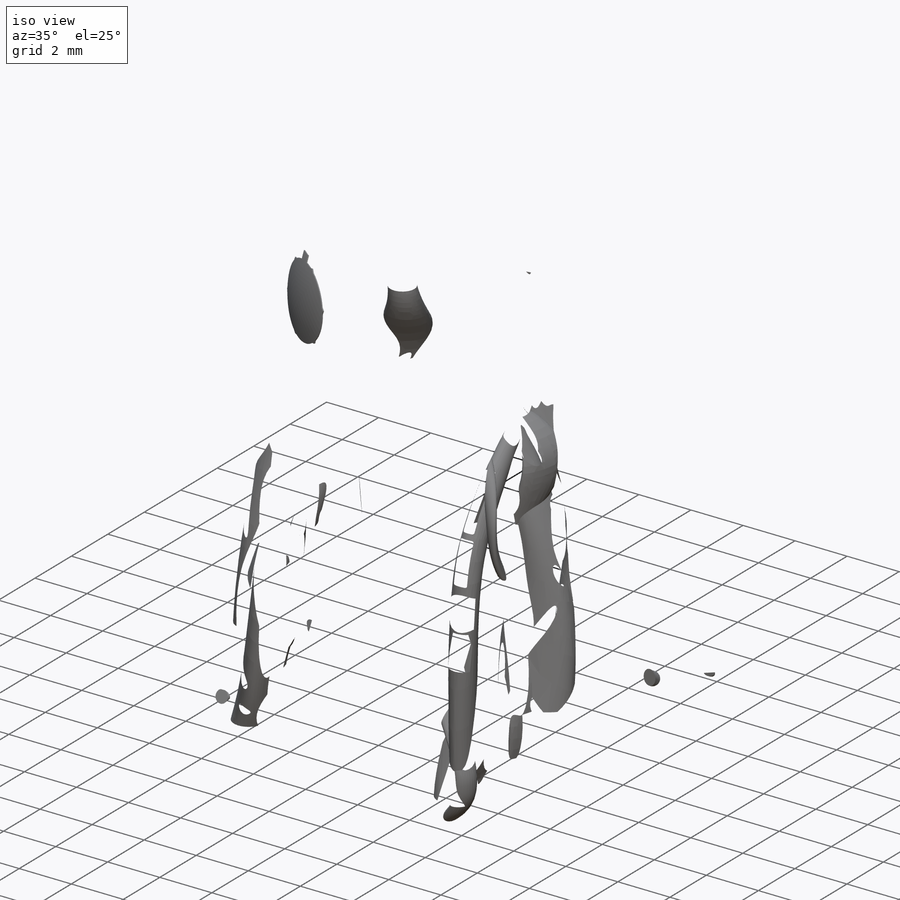
[diagram: iso view]
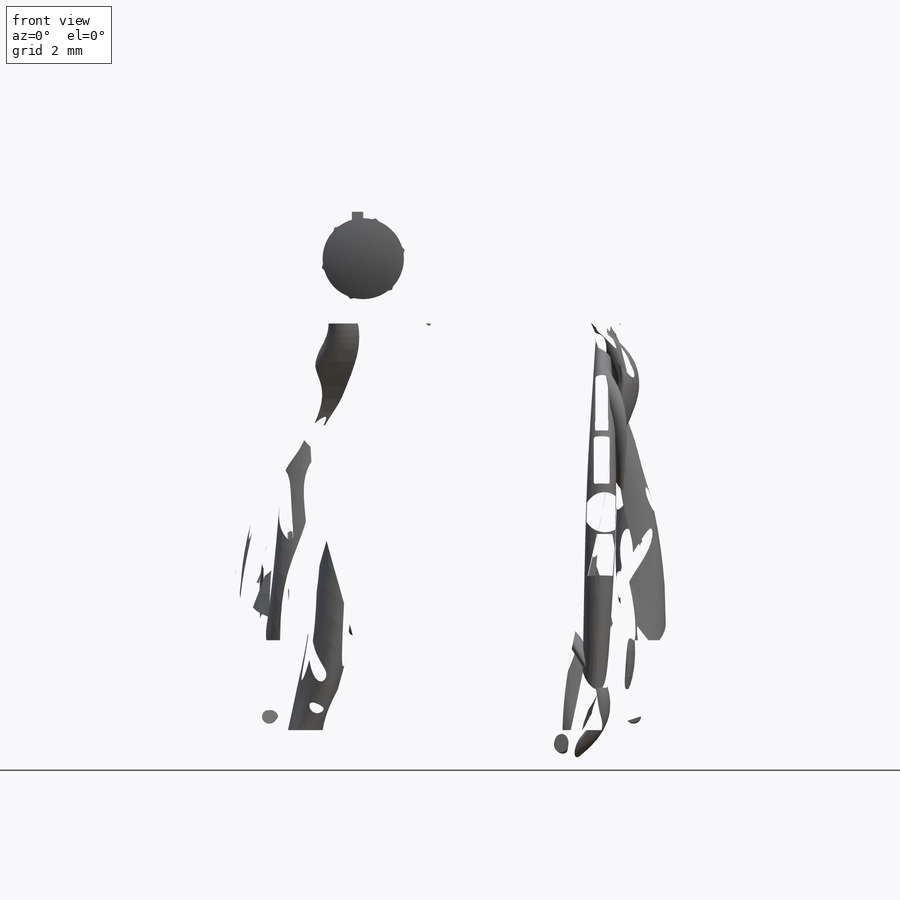
[diagram: front view]
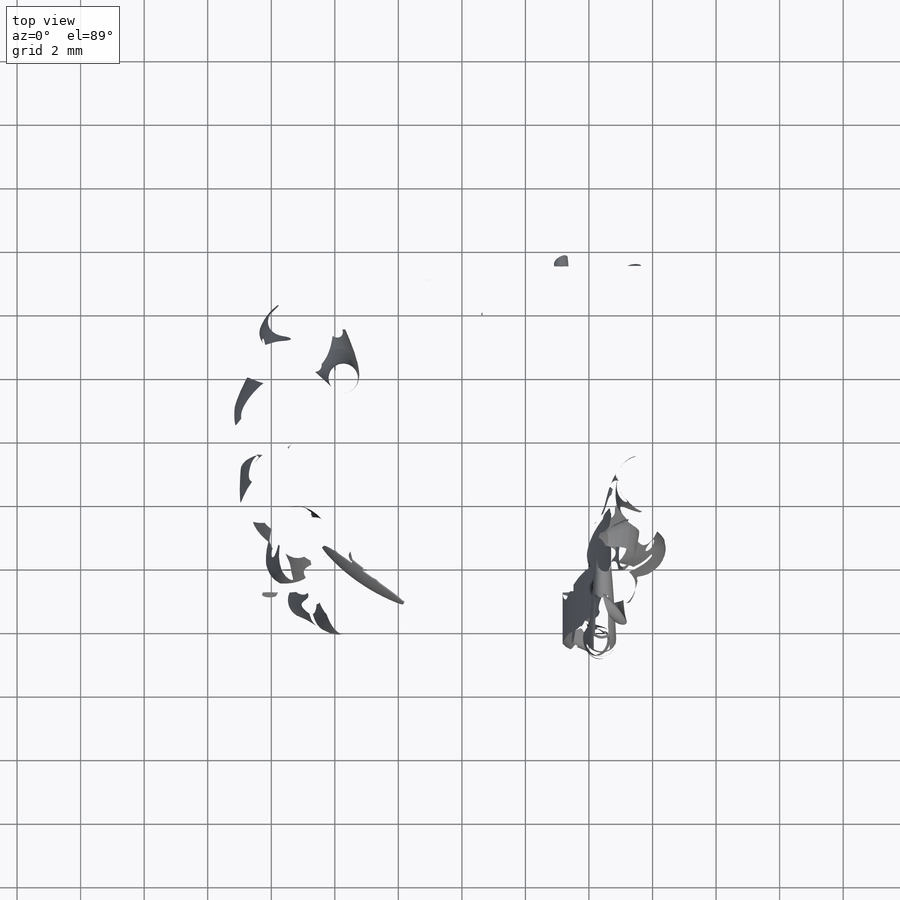
[diagram: top view]
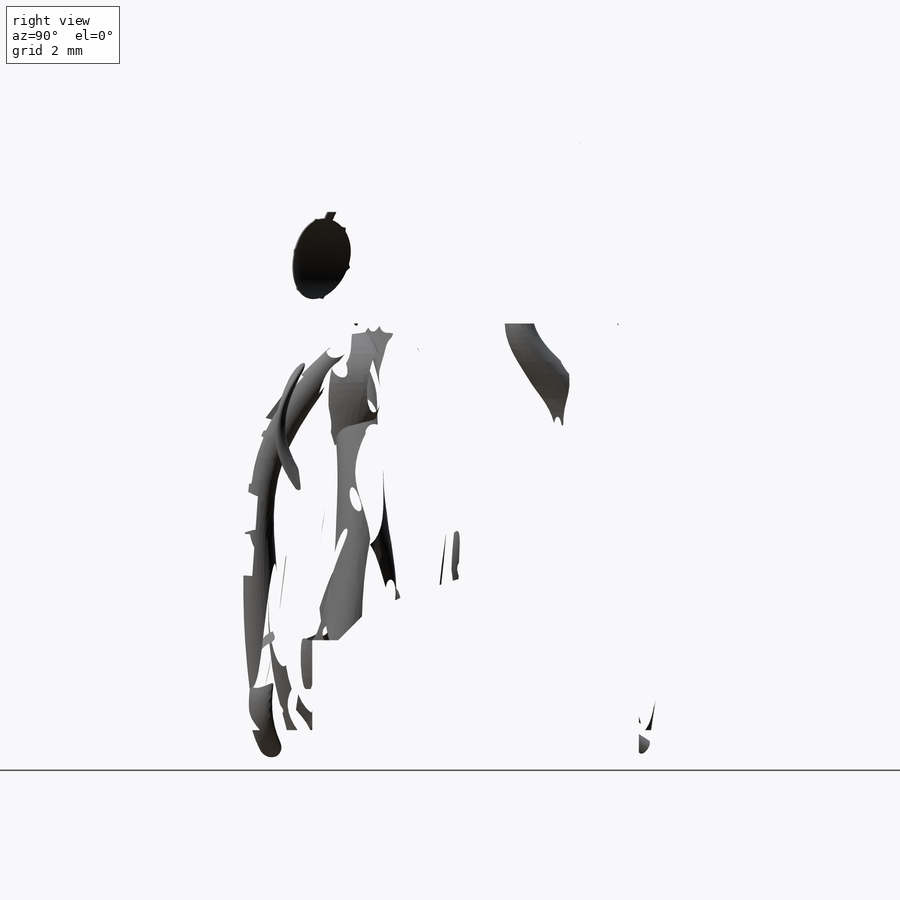
[diagram: right view]
SOLIDWORKS PART (.sldprt)
format: sldprt  version: not decoded by parser v0  size: 42,230,272 bytes
history: native  units: mm
features: sketch x184, plane x31, sweep x25, extrude x9, dome x9, pattern_circular x7, cut_extrude x5, cut_revolve x2, fillet x2, material x1, shell x1 (+11 scaffold rows collapsed)
feature tree (287):
  scaffold x11  (default folders/planes/origin — collapsed)
  material  "Material <not specified>"
  plane  "Plane1"  Offset=0.2mm
  sketch  "Sketch1"  dims[D1=11.0mm]
  extrude  "Boss-Extrude1"  Depth=0.1mm
  dome  "Dome1"
  sketch  "3DSketch6"
  shell  "Shell1"  Thickness=0.5mm
  plane  "Plane2"  Offset=6mm
  plane  "Plane10"  Offset=6mm
  sketch  "Sketch9"  dims[D1=~2.942107mm]
  extrude  "Boss-Extrude2"  Depth=1mm
  sketch  "Sketch10"  dims[D1=~2.206891mm]
  cut_extrude  "Cut-Extrude1"  [1 undecoded]
  sketch  "Sketch13"
  sketch  "Sketch14"
  sketch  "3DSketch10"
  sketch  "Sketch103"
  sketch  "Sketch104"
  sweep  "Sweep3"
  sketch  "Sketch66"
  sketch  "Sketch67"
  sketch  "3DSketch53"
  sweep  "Cut-Sweep4"
  sketch  "Sketch68"
  sketch  "Sketch69"
  sketch  "3DSketch54"
  sweep  "Cut-Sweep5"
  sketch  "Sketch71"
  sketch  "Sketch72"
  sketch  "3DSketch55"
  sweep  "Cut-Sweep6"
  sketch  "Sketch73"
  sketch  "Sketch74"
  sketch  "3DSketch56"
  sweep  "Cut-Sweep7"
  dome  "Dome3"
  sketch  "Sketch15"
  sketch  "3DSketch11"
  plane  "Plane6"  Offset=5mm
  sketch  "Sketch54"
  plane  "Plane7"  Offset=8mm
  plane  "Plane15"  Offset=1mm
  sketch  "Sketch38"
  sketch  "Sketch39"
  sketch  "3DSketch31"
  sketch  "3DSketch32"
  sketch  "Sketch55"
  sketch  "Sketch56"
  sketch  "3DSketch39"
  sketch  "3DSketch40"
  sketch  "Sketch113"
  cut_revolve  "Cut-Revolve1"  Angle=360deg
  sketch  "Sketch114"  dims[D1=10.5mm D2=~0.785486mm]
  extrude  "Boss-Extrude3"  Depth=0.01mm
  dome  "Dome17"
  dome  "Dome8"
  sweep  "Sweep4"
  dome  "Dome4"
  pattern_circular  "CirPattern9"  Count=20 Angle=360deg
  pattern_circular  "CirPattern6"  Count=15 Angle=45deg
  pattern_circular  "CirPattern1"  Count=25 Angle=14.4deg
  sketch  "Sketch17"
  sketch  "3DSketch12"
  sweep  "Sweep5"
  pattern_circular  "CirPattern2"  Count=15 Angle=24deg
  sketch  "Sketch21"  dims[D1=1.0mm]
  sketch  "3DSketch13"
  plane  "Plane3"  Offset=1.836678mm
  plane  "Plane4"  Offset=0.20685mm
  plane  "Plane5"
  sketch  "Sketch26"
  sketch  "3DSketch15"
  sketch  "Sketch27"
  sketch  "3DSketch16"
  sweep  "Sweep10"
  sweep  "Sweep12"
  sweep  "Sweep13"
  sketch  "Sketch28"
  sketch  "3DSketch18"
  sweep  "Sweep14"
  sketch  "Sketch33"
  sketch  "3DSketch24"
  sweep  "Sweep22"
  sketch  "Sketch35"
  sketch  "3DSketch25"
  sweep  "Sweep23"
  sketch  "Sketch29"
  sketch  "Sketch30"
  sketch  "3DSketch21"
  sweep  "Sweep18"
  dome  "Dome6"
  sketch  "Sketch31"
  sketch  "3DSketch22"
  sweep  "Sweep21"
  sketch  "3DSketch26"
  sweep  "Sweep25"
  sketch  "Sketch44"
  sketch  "Sketch45"
  sketch  "Sketch46"
  sketch  "3DSketch33"
  sketch  "3DSketch34"
  sketch  "Sketch47"
  sketch  "Sketch48"
  sketch  "Sketch49"
  sketch  "3DSketch35"
  sketch  "3DSketch36"
  pattern_circular  "CirPattern8"  Count=28 Angle=12.857143deg
  sketch  "Sketch57"
  sketch  "Sketch58"
  sketch  "3DSketch41"
  sweep  "Sweep26"
  sketch  "Sketch59"  dims[D1=3.1mm]
  sketch  "Sketch60"
  plane  "Plane8"
  sketch  "Sketch75"
  sketch  "Sketch76"
  sketch  "Sketch77"
  sketch  "Sketch78"
  sketch  "Sketch79"
  dome  "Dome9"
  sketch  "Sketch83"
  plane  "Plane11"
  sketch  "Sketch84"
  sketch  "Sketch85"
  plane  "Plane12"  Offset=4.5mm
  sketch  "Sketch117"
  sketch  "Sketch90"
  sketch  "Sketch91"
  sketch  "3DSketch59"
  sketch  "3DSketch60"
  sketch  "Sketch93"
  sketch  "Sketch94"
  sketch  "Sketch95"
  sketch  "Sketch96"
  sketch  "Sketch97"
  sketch  "Sketch98"
  plane  "Plane13"  Offset=3mm
  sketch  "Sketch99"
  sketch  "Sketch100"
  sketch  "Sketch101"
  sketch  "Sketch102"
  sketch  "3DSketch67"
  sketch  "3DSketch68"
  pattern_circular  "CirPattern10"  Count=15 Angle=360deg
  sketch  "3DSketch69"
  sweep  "Sweep32"
  plane  "Plane14"  Offset=3mm
  sketch  "Sketch105"
  sketch  "Sketch106"
  sketch  "3DSketch70"
  sketch  "3DSketch71"
  sketch  "3DSketch72"
  cut_extrude  "Cut-Extrude2"  Depth=10mm
  sketch  "Sketch109"
  sketch  "Sketch110"
  sketch  "Sketch111"
  sketch  "3DSketch73"
  sketch  "3DSketch74"
  dome  "Dome16"
  sweep  "Sweep33"
  dome  "Dome18"
  sketch  "3DSketch78"
  sketch  "Sketch119"
  sweep  "Cut-Sweep8"
  plane  "Plane16"  Offset=2.8mm
  plane  "Plane17"  Offset=5mm
  sketch  "Sketch122"
  plane  "Plane18"
  plane  "Plane19"  Offset=1.4mm
  sketch  "Sketch123"
  sketch  "Sketch126"
  plane  "Plane20"  Offset=2.5mm
  sketch  "Sketch127"
  sketch  "3DSketch81"
  sweep  "Sweep36"
  plane  "Plane21"  Offset=6mm
  sketch  "Sketch128"
  sketch  "Sketch129"
  sweep  "Sweep37"
  sketch  "Sketch131"
  plane  "Plane22"  Offset=2mm
  sketch  "Sketch132"
  sketch  "Sketch133"
  sketch  "Sketch134"
  sketch  "Sketch135"
  sketch  "Sketch136"
  sketch  "Sketch137"
  sketch  "Sketch138"
  sketch  "Sketch139"
  sketch  "Sketch140"
  plane  "Plane23"  Offset=3mm
  plane  "Plane24"  Offset=3mm
  sketch  "Sketch141"
  plane  "Plane25"  Offset=1.3mm
  sketch  "Sketch142"
  sketch  "Sketch143"
  sketch  "Sketch144"
  sketch  "Sketch145"
  sketch  "Sketch146"
  sketch  "Sketch147"
  sketch  "Sketch148"
  sketch  "Sketch149"
  sketch  "Sketch150"
  sketch  "Sketch151"
  sketch  "Sketch152"
  sketch  "Sketch153"
  sketch  "Sketch154"
  sketch  "Sketch155"
  sketch  "Sketch156"
  sketch  "Sketch157"
  sketch  "Sketch159"
  sketch  "Sketch161"
  sketch  "Sketch162"
  sketch  "Sketch163"
  sketch  "Sketch164"
  sketch  "Sketch165"
  plane  "Plane26"  Offset=3mm
  sketch  "Sketch167"
  sketch  "Sketch168"
  sketch  "Sketch169"
  sketch  "Sketch170"
  plane  "Plane27"  Offset=0.9mm
  sketch  "Sketch171"
  sketch  "3DSketch82"
  sweep  "Cut-Sweep9"
  sketch  "Sketch172"
  sketch  "3DSketch83"
  sweep  "Cut-Sweep10"
  sketch  "Sketch173"
  sketch  "3DSketch84"
  sweep  "Cut-Sweep11"
  sketch  "Sketch174"
  sketch  "Sketch176"
  sketch  "Sketch177"
  sketch  "3DSketch86"
  sketch  "3DSketch87"
  pattern_circular  "CirPattern11"  Count=19 Angle=360deg
  sketch  "Sketch178"
  cut_extrude  "Cut-Extrude3"  Depth=17mm
  sketch  "Sketch179"
  cut_extrude  "Cut-Extrude4"  Depth=11mm
  sketch  "Sketch180"
  sketch  "Sketch181"
  sketch  "Sketch182"
  sketch  "Sketch183"
  plane  "Plane28"
  plane  "Plane29"  Offset=4.4mm
  sketch  "Sketch187"
  sketch  "Sketch188"
  sketch  "Sketch189"
  plane  "Plane30"  Offset=0.8mm
  sketch  "Sketch190"
  sketch  "3DSketch88"
  sketch  "3DSketch89"
  sketch  "Sketch191"
  sketch  "Sketch192"
  extrude  "Boss-Extrude4"  Depth=0.2mm
  sketch  "Sketch193"
  sketch  "Sketch195"
  extrude  "Boss-Extrude5"  Depth=0.25mm
  extrude  "Boss-Extrude6"  Depth=0.21mm
  fillet  "Fillet1"  Radius=0.06mm
  fillet  "Fillet2"  Radius=0.06mm
  sketch  "Sketch197"
  plane  "Plane32"
  sketch  "Sketch198"
  sketch  "Sketch199"
  extrude  "Boss-Extrude7"  Depth=0.4mm
  extrude  "Boss-Extrude8"  Depth=0.4mm
  sketch  "Sketch200"
  cut_revolve  "Cut-Revolve4"  Angle=360deg
  plane  "Plane33"  Offset=0.5mm
  sketch  "Sketch202"  dims[D1=5.5mm]
  extrude  "Boss-Extrude9"  Depth=2mm
  sketch  "Sketch203"  dims[D1=4.9mm]
  cut_extrude  "Cut-Extrude5"  Depth=2mm
decode coverage: 33 of 244 modeling features carry decoded parameters
note: ~ marks probable driven/reference dimensions
note: 1 parameter value undecoded
summary: profile_refs inferred from adjacent sketches, not decoded
note: suppression state not decoded; provenance and decode notes live in map.json
